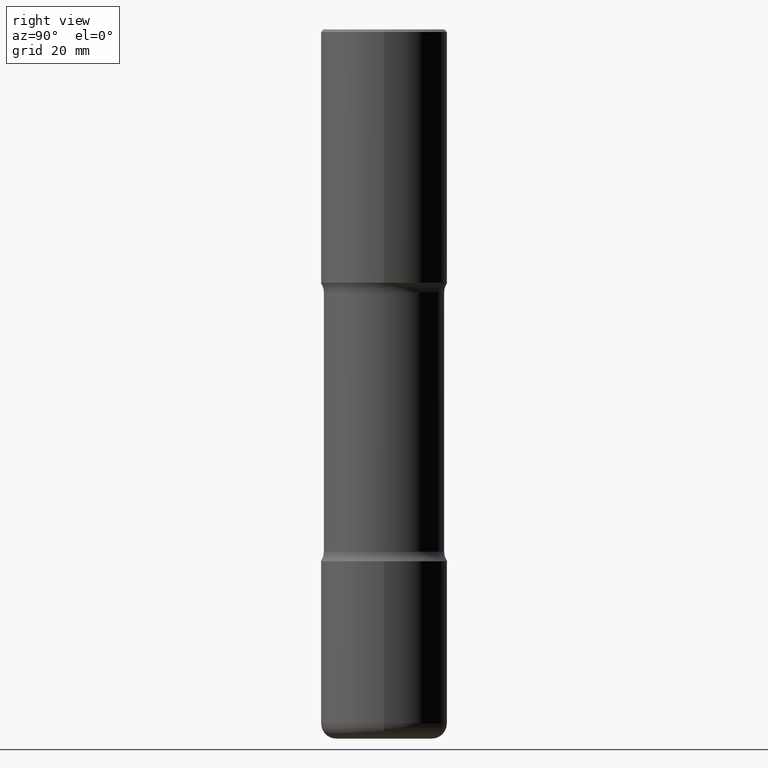
[diagram: clean part render]
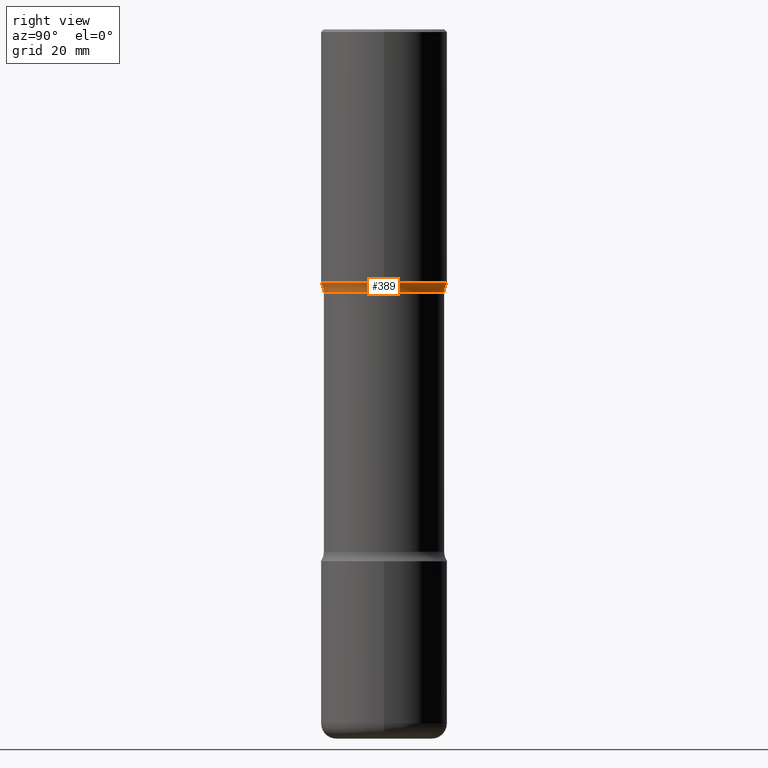
[diagram: same view with one face highlighted and labeled with its STEP entity id]
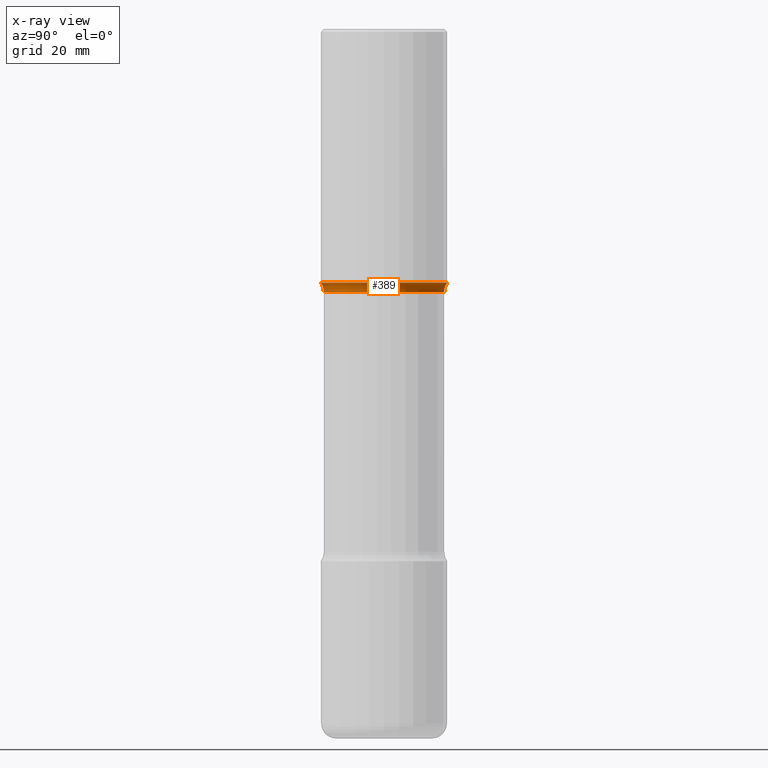
[diagram: x-ray of the same camera — body ghosted, the highlighted face saturated]
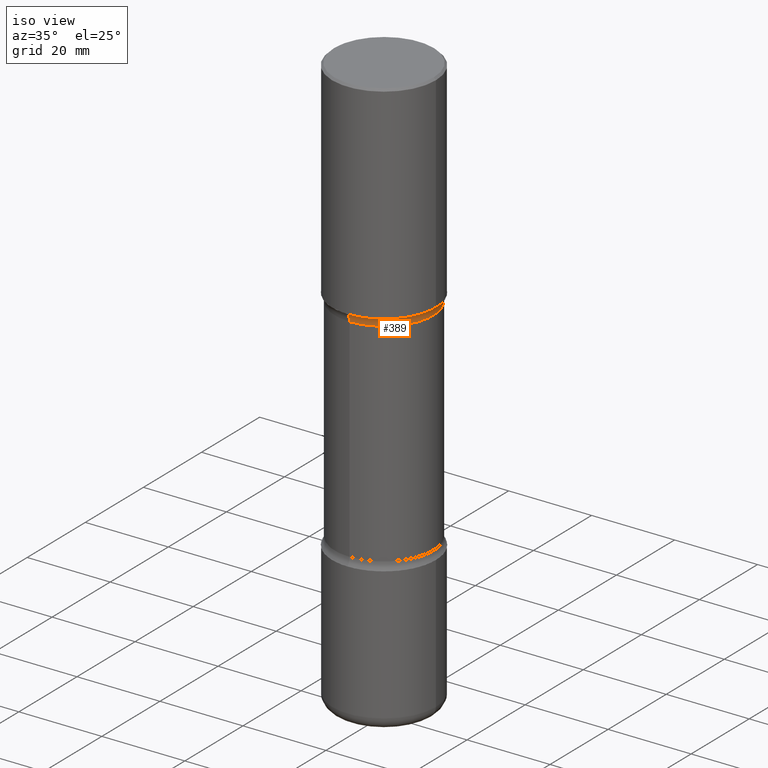
[diagram: same view with one face highlighted and labeled with its STEP entity id]
A machine part, right view. The second image highlights one B-rep face of the part: STEP entity #389.
The next image is the same camera in x-ray: the body ghosted, the highlighted face saturated — about 0% of this face is hidden behind the body in this view.
A second angle (iso view) of the same face is appended — the face is thin or edge-on in the first view.
In plain terms, the highlighted toroidal blend (fillet) surface has major radius 15.0495 mm and minor (blend) radius 3.175 mm.
Its self-contained STEP definition (entity closure, byte-faithful):
#6 = EDGE_LOOP ( 'NONE', ( #391, #255, #208, #361 ) ) ;
#13 = EDGE_CURVE ( 'NONE', #345, #197, #22, .T. ) ;
#17 = CARTESIAN_POINT ( 'NONE',  ( 3.436665081823346264E-15, 0.4921499999999935371, -1.968500000000001249 ) ) ;
#22 = CIRCLE ( 'NONE', #486, 0.1250000000000001665 ) ;
#31 = DIRECTION ( 'NONE',  ( 6.982962677686265133E-15, 1.000000000000000000, -3.392357681598433540E-15 ) ) ;
#37 = CIRCLE ( 'NONE', #443, 0.4675000000000001377 ) ;
#53 = EDGE_CURVE ( 'NONE', #344, #231, #558, .T. ) ;
#58 = TOROIDAL_SURFACE ( 'NONE', #75, 0.5925000000000002487, 0.1250000000000001388 ) ;
#64 = DIRECTION ( 'NONE',  ( 2.514686486086695474E-29, -3.392357681598433540E-15, -1.000000000000000000 ) ) ;
#75 = AXIS2_PLACEMENT_3D ( 'NONE', #485, #64, #31 ) ;
#80 = DIRECTION ( 'NONE',  ( 2.514686486086695474E-29, -3.392357681598433540E-15, -1.000000000000000000 ) ) ;
#90 = DIRECTION ( 'NONE',  ( 6.982962677686265922E-15, 1.000000000000000000, -3.506115072082476004E-15 ) ) ;
#96 = EDGE_CURVE ( 'NONE', #344, #345, #37, .T. ) ;
#121 = CIRCLE ( 'NONE', #266, 0.4921500000000005870 ) ;
#142 = FACE_OUTER_BOUND ( 'NONE', #6, .T. ) ;
#157 = DIRECTION ( 'NONE',  ( 6.860497997771528407E-15, 1.000000000000000000, 0.000000000000000000 ) ) ;
#184 = DIRECTION ( 'NONE',  ( -1.000000000000000000, 6.982962677686265922E-15, -4.883557194083112340E-29 ) ) ;
#197 = VERTEX_POINT ( 'NONE', #445 ) ;
#208 = ORIENTED_EDGE ( 'NONE', *, *, #53, .T. ) ;
#231 = VERTEX_POINT ( 'NONE', #17 ) ;
#245 = EDGE_CURVE ( 'NONE', #231, #197, #121, .T. ) ;
#251 = DIRECTION ( 'NONE',  ( -6.982962677686265133E-15, -1.000000000000000000, 0.000000000000000000 ) ) ;
#255 = ORIENTED_EDGE ( 'NONE', *, *, #96, .F. ) ;
#266 = AXIS2_PLACEMENT_3D ( 'NONE', #480, #357, #491 ) ;
#268 = CARTESIAN_POINT ( 'NONE',  ( -3.291838451780680876E-15, -0.4675000000000075207, -2.043031050576251229 ) ) ;
#278 = CARTESIAN_POINT ( 'NONE',  ( -4.064845063679584772E-15, -0.5925000000000075762, -2.043031050576251673 ) ) ;
#320 = AXIS2_PLACEMENT_3D ( 'NONE', #466, #184, #251 ) ;
#329 = CARTESIAN_POINT ( 'NONE',  ( 4.851450528362542528E-29, -7.340449452484660690E-15, -2.043031050576253005 ) ) ;
#344 = VERTEX_POINT ( 'NONE', #450 ) ;
#345 = VERTEX_POINT ( 'NONE', #268 ) ;
#357 = DIRECTION ( 'NONE',  ( 2.514686486086695474E-29, -3.392357681598433540E-15, -1.000000000000000000 ) ) ;
#361 = ORIENTED_EDGE ( 'NONE', *, *, #245, .T. ) ;
#389 = ADVANCED_FACE ( 'NONE', ( #142 ), #58, .F. ) ;
#391 = ORIENTED_EDGE ( 'NONE', *, *, #13, .F. ) ;
#413 = DIRECTION ( 'NONE',  ( 1.000000000000000000, -6.860497997771530774E-15, 4.842012794319787643E-29 ) ) ;
#443 = AXIS2_PLACEMENT_3D ( 'NONE', #329, #80, #90 ) ;
#445 = CARTESIAN_POINT ( 'NONE',  ( -3.376394089603216058E-15, -0.4921500000000076924, -1.968499999999997918 ) ) ;
#450 = CARTESIAN_POINT ( 'NONE',  ( 3.264535051818378912E-15, 0.4674999999999928102, -2.043031050576254337 ) ) ;
#466 = CARTESIAN_POINT ( 'NONE',  ( 4.137405386529163040E-15, 0.5924999999999929212, -2.043031050576255225 ) ) ;
#480 = CARTESIAN_POINT ( 'NONE',  ( 4.664028302684594941E-29, -7.087613470544705473E-15, -1.968499999999999472 ) ) ;
#485 = CARTESIAN_POINT ( 'NONE',  ( 4.853095759895353255E-29, -7.338093387288914893E-15, -2.043031050576253449 ) ) ;
#486 = AXIS2_PLACEMENT_3D ( 'NONE', #278, #413, #157 ) ;
#491 = DIRECTION ( 'NONE',  ( 6.982962677686265922E-15, 1.000000000000000000, -3.330506545156062313E-15 ) ) ;
#558 = CIRCLE ( 'NONE', #320, 0.1250000000000001665 ) ;